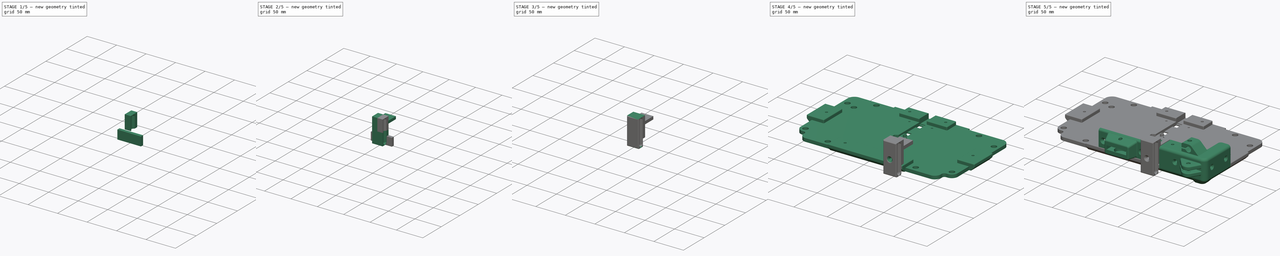
[diagram: build sequence overview — one tinted view per stage of 5, left to right]
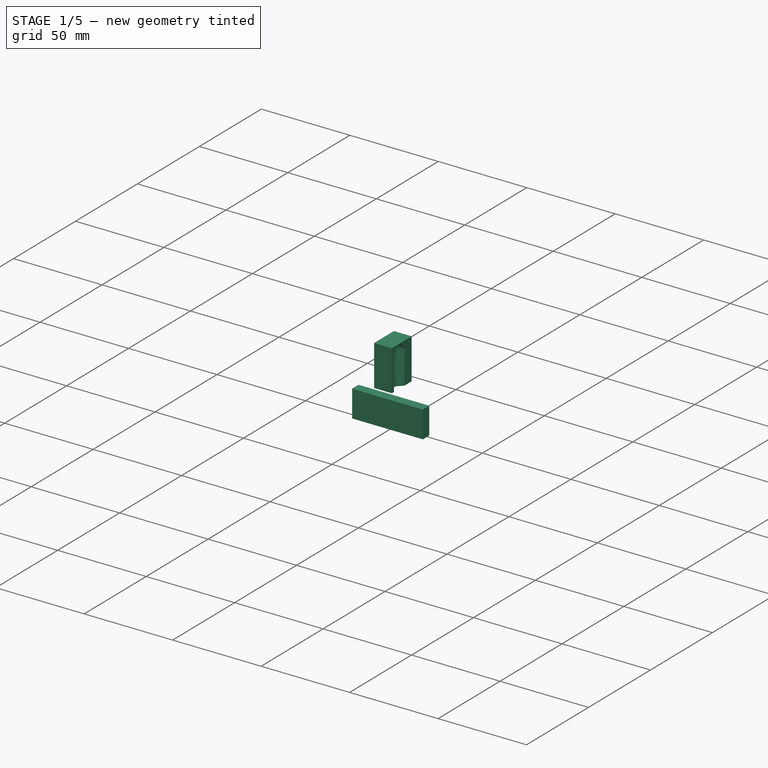
[diagram: stage 1 of 5 — iso view after this stage's code; geometry added in this stage tinted green]
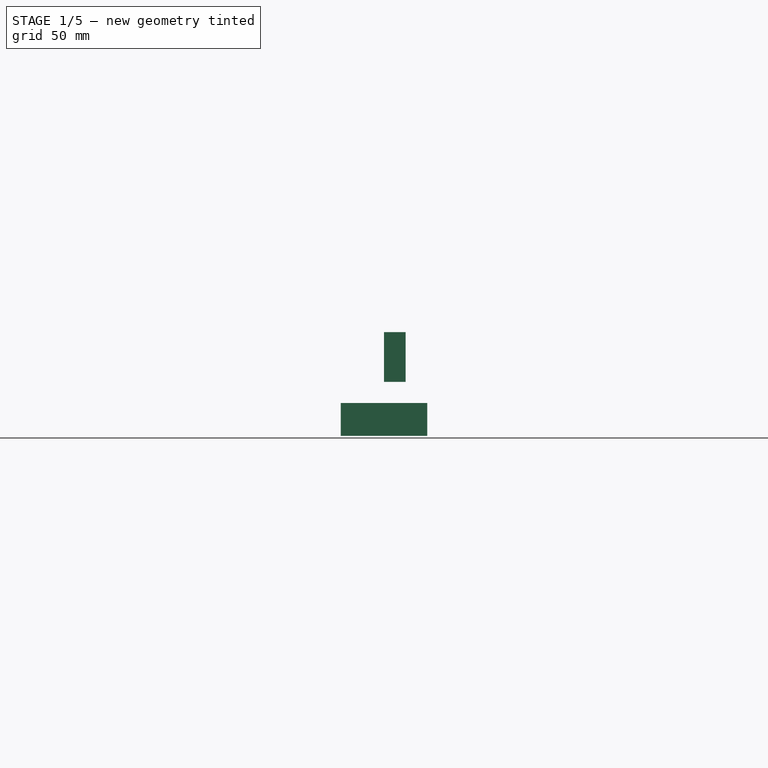
[diagram: stage 1 of 5 — front view after this stage's code; geometry added in this stage tinted green]
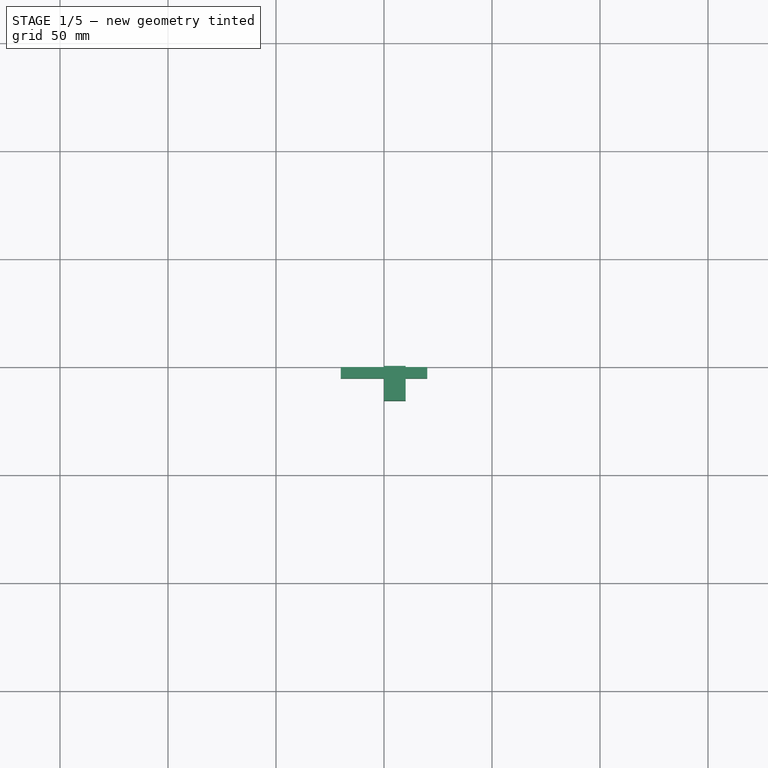
[diagram: stage 1 of 5 — top view after this stage's code; geometry added in this stage tinted green]
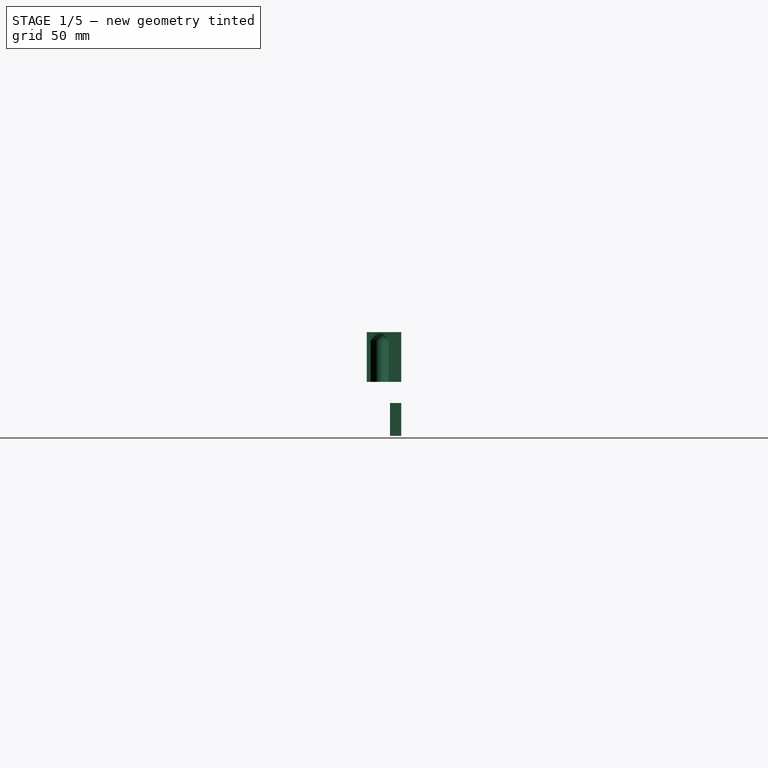
[diagram: stage 1 of 5 — right view after this stage's code; geometry added in this stage tinted green]
FCSTD DOCUMENT  (FreeCAD 0.16RUnknown)
Label: FrontGuide
License: All rights reserved
LicenseURL: http://en.wikipedia.org/wiki/All_rights_reserved
objects: Part::FeaturePython×9, Sketcher::SketchObject×6, Part::Cut×4, App::DocumentObjectGroup×4, PartDesign::Pad×3, Part::MultiFuse×3, Part::Mirroring×2, Part::Chamfer×2, Part::Feature×1, Spreadsheet::Sheet×1, Part::Sweep×1, Part::Fillet×1, PartDesign::Revolution×1
note: 37 computed .brp shape members not serialized (recipe doc carries the construction recipe); baked Part::Feature solids carry a one-line shape summary decoded from their .brp

FEATURE [Spreadsheet::Sheet] Spreadsheet  label="pars"
  cells = A1=Bolts and Nuts; B1=Value; D1=Components; E1=Value; A2=Thread Tight Tolerance (Radius, ratio); B2(ThrTighRatio)=0.96; D2=Tight Cilinder Tolerances (Radius, mm); E2(CilTight)=0.1; A3=Thread Tight Tolerance (Radius, mm); B3(ThrTightmm)=0.1; D3=Loose Cilinder Tolerances (Radius, mm); E3(CilLoose)=0.1; A5=Nut Slot Width Clearance (mm); B5(NutWidthClearmm)=0.1; A6=Nut Slot Thickess Clearance (mm); B6(NutThickClearmm)=0.1; A13=Particular parameters; B13=Value; A14=Front Clearance; B14(FrontClear)=1; A15=Ball Tightness; B15(BallTight)=0.33; A16=Rail Clearance; B16(RailClear)=0; A17=Tunnel Clearance; B17(BallTunClear)=0.05; A18=Ball Upper Clearance; B18(BallUpClear)=0.4; A19=Ball Shape Tolerance; B19(BallShapeTol)=-0.054; A20=Rail Length; B20(RailLen)=38; A21=Lower Cover Clearance; B21(LowClear)=0.2
FEATURE [PartDesign::Pad] Pad  label="RailBase001"
  Length = 23
  Length2 = 100
  Sketch = -> Sketch
  Type = 0
  expr: Length = pars.RailLen / 2 + 4
FEATURE [Sketcher::SketchObject] Sketch001  label="RailSection"
  expr: Constraints[6] = pars.BallShapeTol + 3
  sketch-geometry (4):
    g0: Circle [constr] CenterX=10 CenterY=-10 CenterZ=0 NormalX=0 NormalY=0 NormalZ=1 Radius=2.946
    g1: LineSegment StartX=10.2 StartY=-5.63373 StartZ=0 EndX=5.83373 EndY=-10 EndZ=0
    g2: LineSegment StartX=5.83373 StartY=-10 StartZ=0 EndX=10.2 EndY=-14.3663 EndZ=0
    g3: LineSegment StartX=10.2 StartY=-14.3663 StartZ=0 EndX=10.2 EndY=-5.63373 EndZ=0
  constraints (12):
    c: Coincident(g1,g2)
    c: Coincident(g2,g3)
    c: Coincident(g1,g3)
    c: Vertical(g3)
    c: Perpendicular(g2,g1)
    c: Angle(g1) = -2.35619
    c: Radius(g0) = 2.946
    c: Tangent(g1,g0)
    c: Tangent(g0,g2)
    c: DistanceX(g0) = 10
    c: DistanceX(g1) = 10.2
    c: DistanceY(g0) = -10
FEATURE [Sketcher::SketchObject] Sketch002  label="RailPath"
  Placement = pos=(0,0,0) rot=(1,0,0;1.5708rad)
  expr: Constraints[9] = pars.RailLen / 2
  sketch-geometry (3):
    g0: LineSegment StartX=6.5 StartY=0 StartZ=0 EndX=6.5 EndY=19 EndZ=0
    g1: ArcOfCircle CenterX=10.5 CenterY=19 CenterZ=0 NormalX=0 NormalY=0 NormalZ=1 Radius=4 StartAngle=1.5708 EndAngle=3.14159
    g2: LineSegment StartX=10.5 StartY=23 StartZ=0 EndX=18.5 EndY=23 EndZ=0
  constraints (11):
    c: Coincident(g1,g0)
    c: Tangent(g1,g0)
    c: Vertical(g0)
    c: PointOnObject(g0,g-1)
    c: Horizontal(g2)
    c: Coincident(g2,g1)
    c: Tangent(g2,g1)
    c: DistanceX(g1) = 10.5
    c: DistanceX(g2,g2) = 8
    c: DistanceY(g0,g0) = 19
    c: Radius(g1) = 4
FEATURE [Part::Sweep] Sweep  label="RailSweep"
  Frenet = false
  Sections = -> [Sketch001]
  Solid = true
  Spine = -> Sketch002 [Edge2,Edge1,Edge3]
  Transition = 1
FEATURE [Part::Fillet] Fillet  label="RailFillet"
  Base = -> Sweep
  Edges = 1 edges r=2.8: [Edge17]
FEATURE [Part::Cut] Cut  label="LaneCut"
  Base = -> Pad
  Tool = -> Fillet
FEATURE [App::DocumentObjectGroup] Group  label="Reference"
  Group = -> [Fillet002,FrontCorner_01,FocusWheelHolder_01,LowerCover_01]
FEATURE [Sketcher::SketchObject] Sketch011  label="LowCoverSpace"
  Placement = pos=(0,0,0) rot=(0.57735,0.57735,0.57735;2.0944rad)
  expr: Constraints[9] = -10 + pars.LowClear
  expr: Constraints[10] = 5 + pars.LowClear
  sketch-geometry (4):
    g0: LineSegment StartX=0 StartY=-9.8 StartZ=0 EndX=-5.2 EndY=-9.8 EndZ=0
    g1: LineSegment StartX=-5.2 StartY=-9.8 StartZ=0 EndX=-5.2 EndY=-25 EndZ=0
    g2: LineSegment StartX=-5.2 StartY=-25 StartZ=0 EndX=0 EndY=-25 EndZ=0
    g3: LineSegment StartX=0 StartY=-25 StartZ=0 EndX=0 EndY=-9.8 EndZ=0
  constraints (12):
    c: Coincident(g0,g1)
    c: Coincident(g1,g2)
    c: Coincident(g2,g3)
    c: Coincident(g3,g0)
    c: Horizontal(g0)
    c: Horizontal(g2)
    c: Vertical(g1)
    c: Vertical(g3)
    c: PointOnObject(g0,g-2)
    c: DistanceY(g0) = -9.8
    c: DistanceX(g0,g0) = 5.2
    c: DistanceY(g2) = -25
FEATURE [PartDesign::Pad] Pad002  label="LowCoverSpace001"
  Length = 40
  Length2 = 100
  Midplane = true
  Placement = pos=(0,0,0) rot=(0.57735,0.57735,0.57735;2.0944rad)
  Sketch = -> Sketch011
  Type = 0
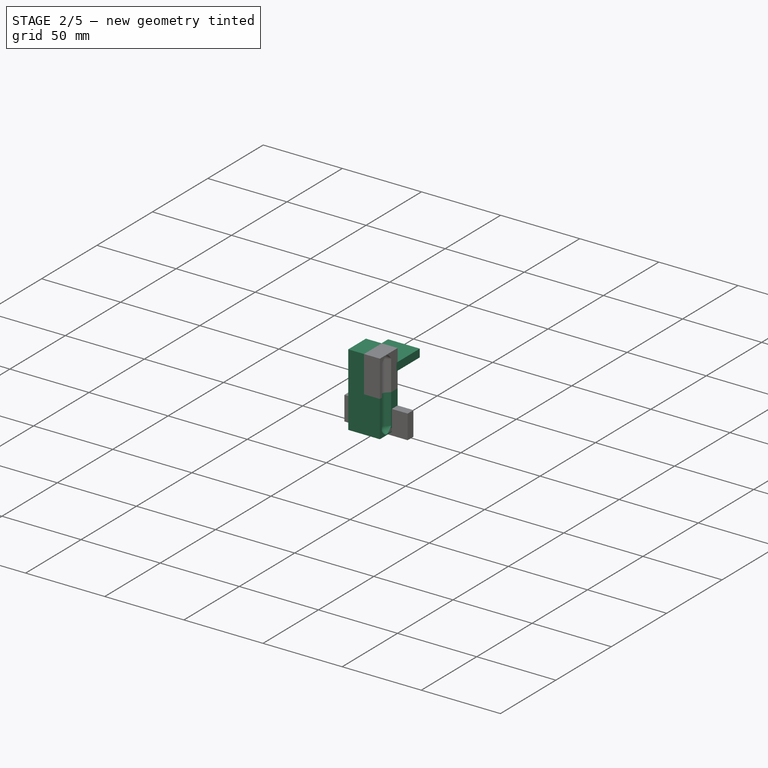
[diagram: stage 2 of 5 — iso view after this stage's code; geometry added in this stage tinted green]
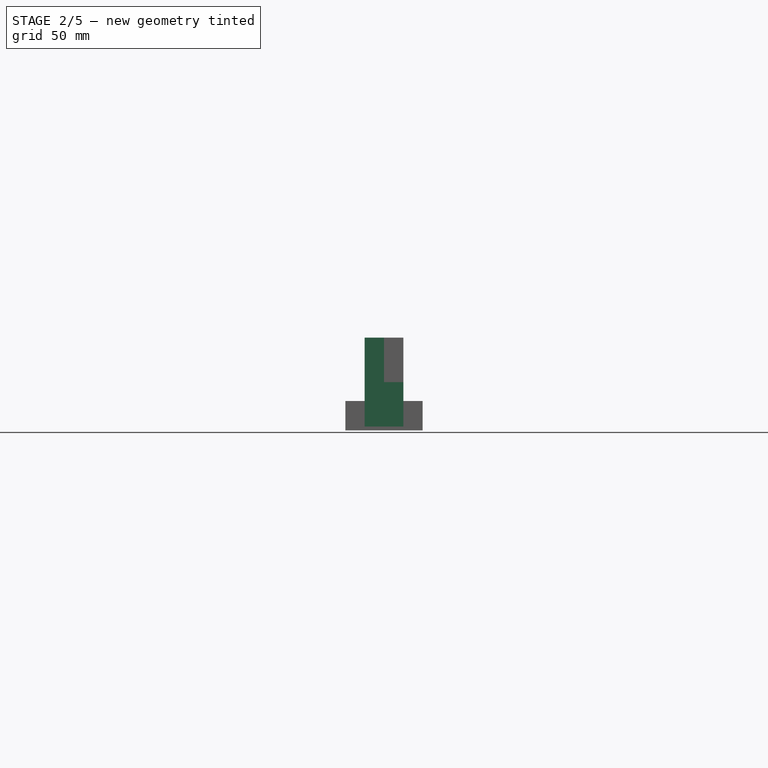
[diagram: stage 2 of 5 — front view after this stage's code; geometry added in this stage tinted green]
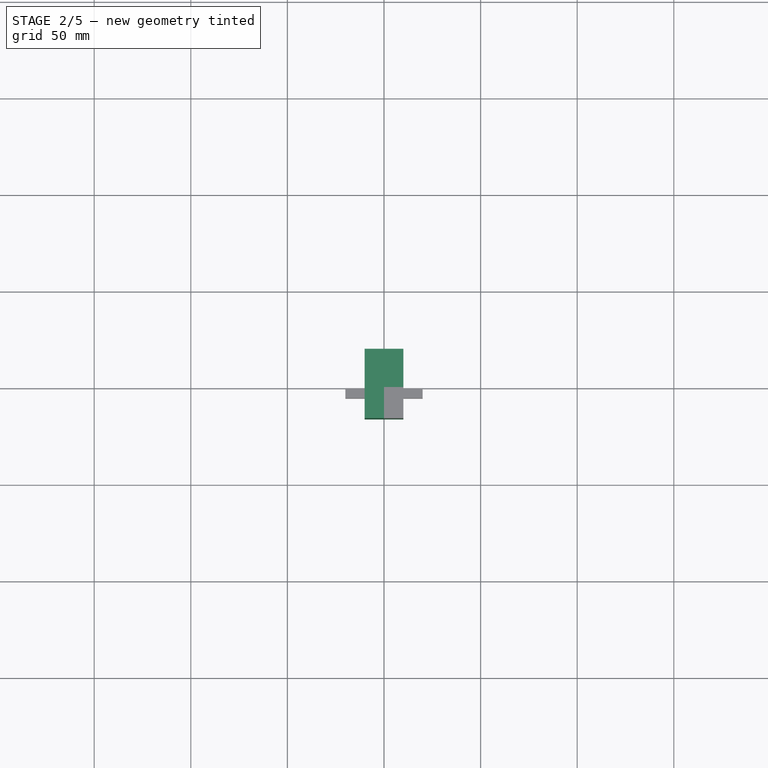
[diagram: stage 2 of 5 — top view after this stage's code; geometry added in this stage tinted green]
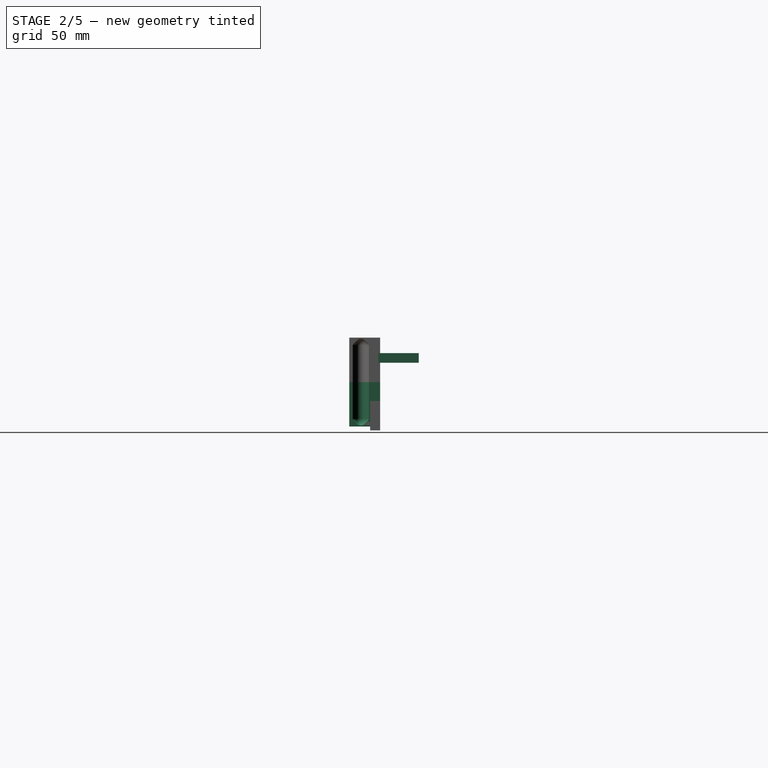
[diagram: stage 2 of 5 — right view after this stage's code; geometry added in this stage tinted green]
FEATURE [Sketcher::SketchObject] Sketch003  label="Plate"
  Placement = pos=(0,0,0) rot=(0.57735,0.57735,0.57735;2.0944rad)
  sketch-geometry (4):
    g0: LineSegment StartX=-1 StartY=15 StartZ=0 EndX=20 EndY=15 EndZ=0
    g1: LineSegment StartX=20 StartY=15 StartZ=0 EndX=20 EndY=10 EndZ=0
    g2: LineSegment StartX=20 StartY=10 StartZ=0 EndX=-1 EndY=10 EndZ=0
    g3: LineSegment StartX=-1 StartY=10 StartZ=0 EndX=-1 EndY=15 EndZ=0
  constraints (12):
    c: Coincident(g0,g1)
    c: Coincident(g2,g3)
    c: Coincident(g3,g0)
    c: Horizontal(g0)
    c: Horizontal(g2)
    c: Vertical(g3)
    c: Vertical(g1)
    c: DistanceY(g1,g1) = 5
    c: DistanceX(g1) = 20
    c: DistanceY(g1) = 10
    c: DistanceX(g0) = -1
    c: Coincident(g2,g1)
FEATURE [PartDesign::Pad] Pad001  label="Plate001"
  Length = 20
  Length2 = 100
  Midplane = true
  Placement = pos=(0,0,0) rot=(0.57735,0.57735,0.57735;2.0944rad)
  Sketch = -> Sketch003
  Type = 0
  expr: Length = RailBase.Constraints.RailWidth * 2
FEATURE [Part::Mirroring] Part__Mirroring002  label="LaneCut (Mirror #3)"
  Base = (0,0,0)
  Normal = (1,0,0)
  Source = -> Cut
FEATURE [Part::MultiFuse] Fusion002
  Shapes = -> [Part__Mirroring002,Cut]
FEATURE [Part::Mirroring] Part__Mirroring003  label="Fusion002 (Mirror #4)"
  Base = (0,0,0)
  Normal = (0,0,1)
  Source = -> Fusion002
FEATURE [Part::MultiFuse] Fusion003  label="Mirroring"
  Shapes = -> [Fusion002,Part__Mirroring003]
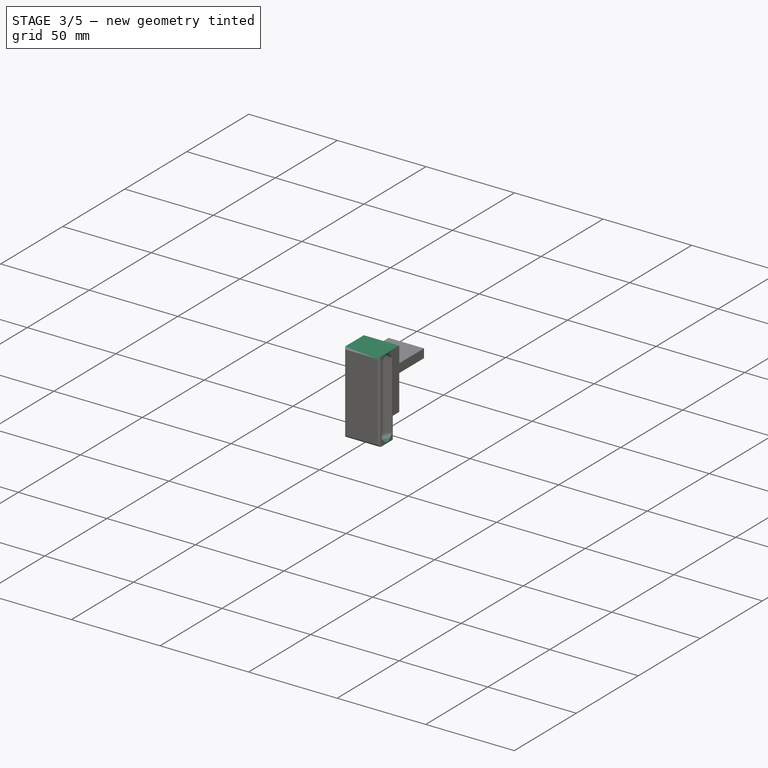
[diagram: stage 3 of 5 — iso view after this stage's code; geometry added in this stage tinted green]
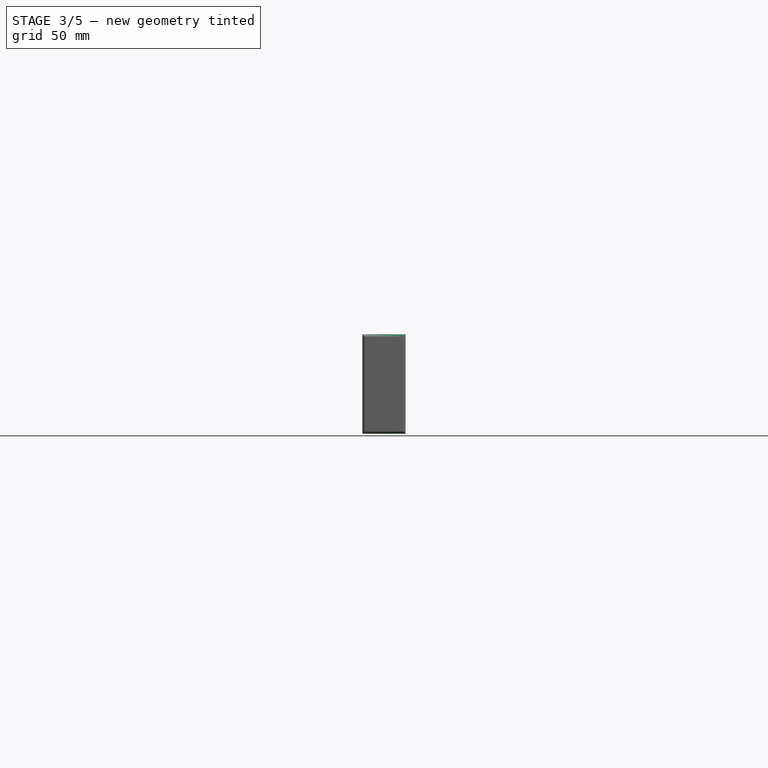
[diagram: stage 3 of 5 — front view after this stage's code; geometry added in this stage tinted green]
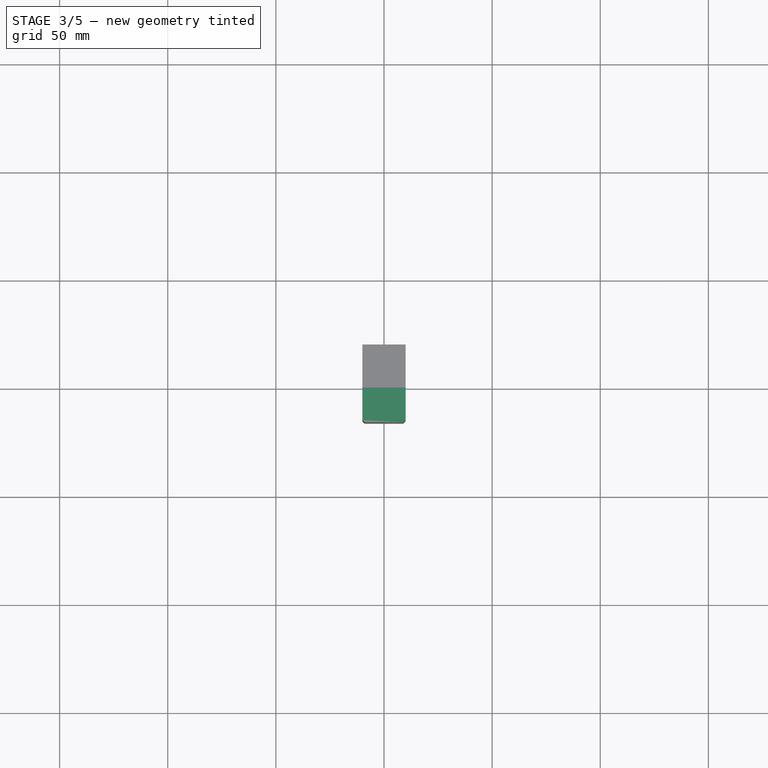
[diagram: stage 3 of 5 — top view after this stage's code; geometry added in this stage tinted green]
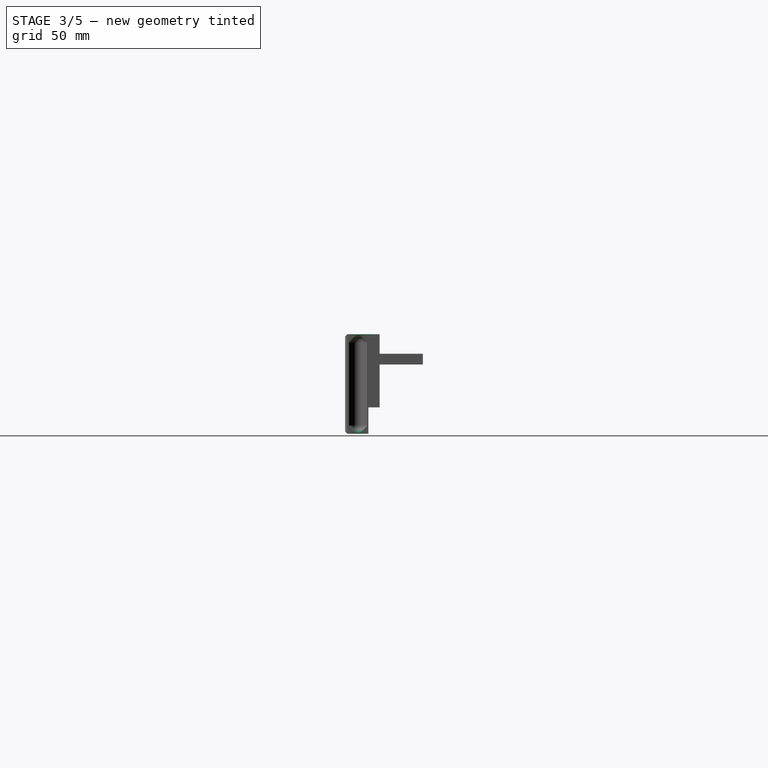
[diagram: stage 3 of 5 — right view after this stage's code; geometry added in this stage tinted green]
FEATURE [Part::FeaturePython] refine  label="Rail"  # WARN: FeaturePython — macro-defined, semantics opaque (R4)
  Base = -> Fusion003
FEATURE [App::DocumentObjectGroup] Group001  label="Rail_src"
  Group = -> [Sketch001,Sketch002,Sweep,refine,Fusion003]
FEATURE [Part::FeaturePython] Clone  label="Clone of Rail"  # Draft clone (typed FeaturePython)
  Objects = -> [refine]
  Placement = pos=(0,0,1) rot=(0,0,1;0rad)
  Scale = (1,1,1)
FEATURE [Part::MultiFuse] Fusion  label="PlateAdd"
  Shapes = -> [Clone,Pad001]
FEATURE [Part::FeaturePython] refine001  label="refine_Fusion"  # WARN: FeaturePython — macro-defined, semantics opaque (R4)
  Base = -> Fusion
FEATURE [Part::Chamfer] Chamfer  label="NiceChamfer"
  Base = -> refine001
  Edges = 4 edges r=1: [Edge17,Edge20,Edge23,Edge24]
FEATURE [Part::Cut] Cut003  label="LowCoverCut"
  Base = -> Chamfer
  Tool = -> Pad002
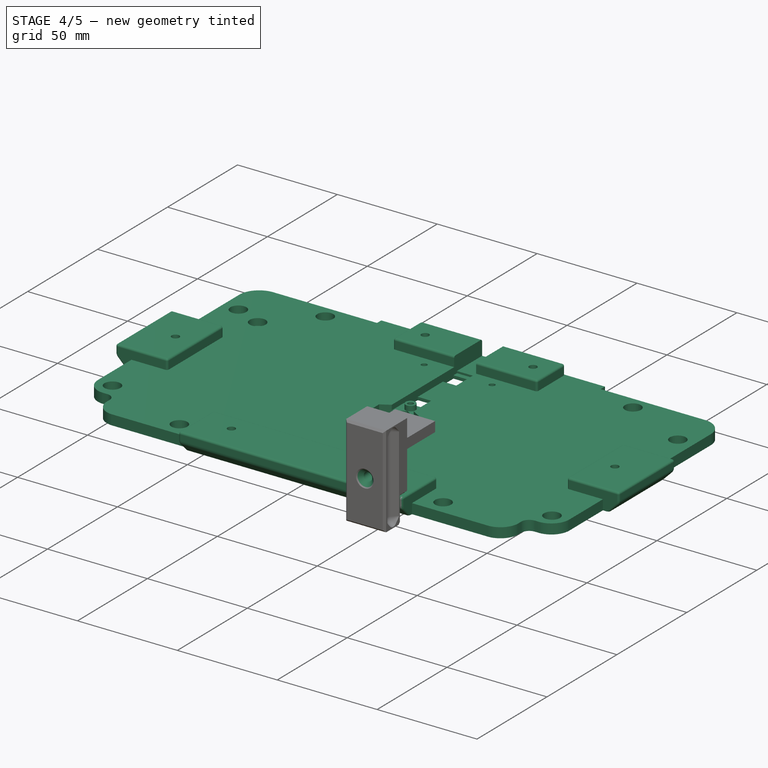
[diagram: stage 4 of 5 — iso view after this stage's code; geometry added in this stage tinted green]
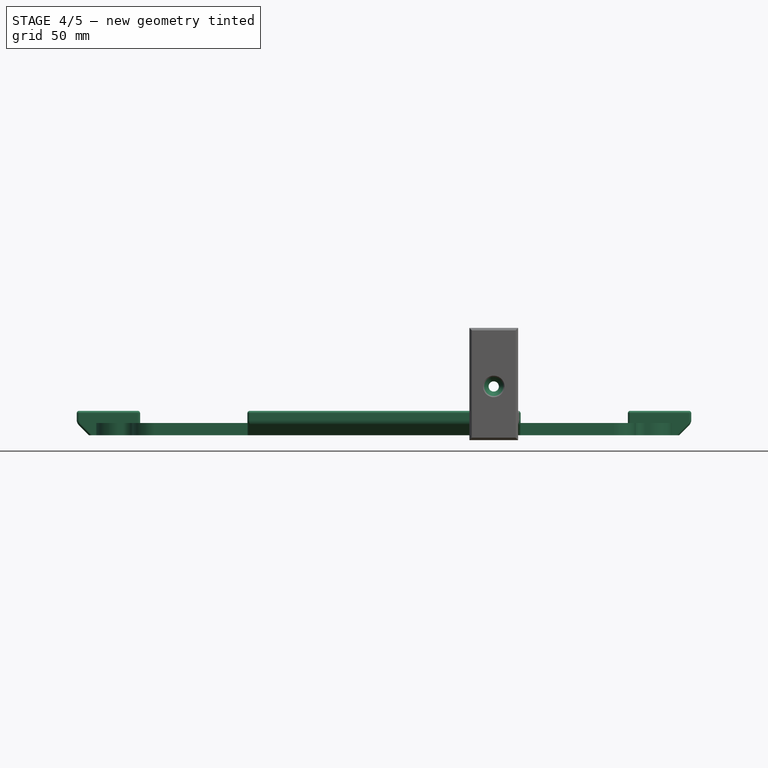
[diagram: stage 4 of 5 — front view after this stage's code; geometry added in this stage tinted green]
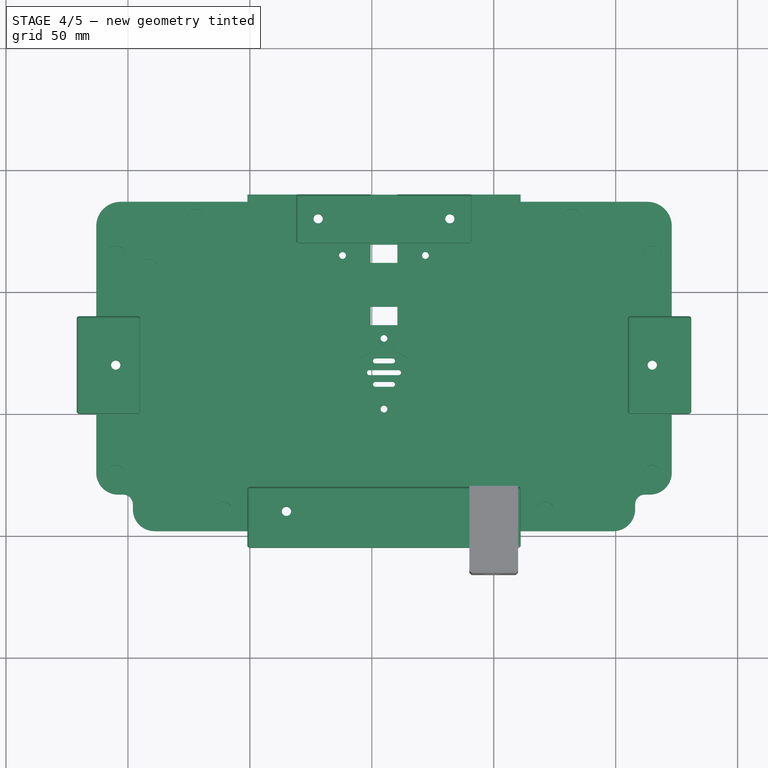
[diagram: stage 4 of 5 — top view after this stage's code; geometry added in this stage tinted green]
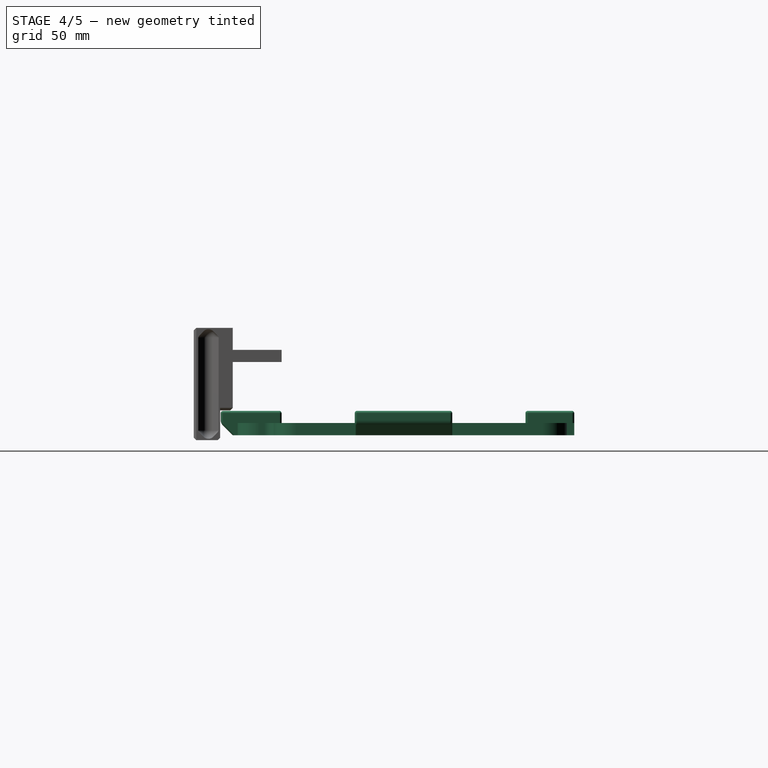
[diagram: stage 4 of 5 — right view after this stage's code; geometry added in this stage tinted green]
FEATURE [Sketcher::SketchObject] Sketch010  label="DIN7991M4Bolt"
  expr: Constraints[11] = pars.CilLoose + 2
  sketch-geometry (5):
    g0: LineSegment StartX=0 StartY=0 StartZ=0 EndX=4.4 EndY=0 EndZ=0
    g1: LineSegment StartX=4.4 StartY=0 StartZ=0 EndX=2.1 EndY=-2.3 EndZ=0
    g2: LineSegment StartX=2.1 StartY=-2.3 StartZ=0 EndX=2.1 EndY=-20 EndZ=0
    g3: LineSegment StartX=2.1 StartY=-20 StartZ=0 EndX=0 EndY=-20 EndZ=0
    g4: LineSegment StartX=0 StartY=-20 StartZ=0 EndX=0 EndY=0 EndZ=0
  constraints (14):
    c: Coincident(g0,g1)
    c: Coincident(g1,g2)
    c: Coincident(g2,g3)
    c: Coincident(g3,g4)
    c: Coincident(g4,g0)
    c: Vertical(g4)
    c: Vertical(g2)
    c: Horizontal(g0)
    c: Horizontal(g3)
    c: Coincident(g0,g-1)
    c: Angle(g0,g1) = 0.785398
    c: DistanceX(g3,g3) = 2.1
    c: DistanceY(g4,g4) = 20
    c: DistanceY(g1,g0) = 2.3
FEATURE [PartDesign::Revolution] Revolution001  label="DIN7991M4Bolt001"
  Angle = 360
  Axis = (0,1,0)
  Base = (0,0,0)
  ReferenceAxis = -> Sketch010 [V_Axis]
  Reversed = true
  Sketch = -> Sketch010
FEATURE [App::DocumentObjectGroup] Group003  label="Component_src"
  Group = -> [Revolution001]
FEATURE [Part::FeaturePython] Clone001  label="Clone of DIN7991M4Bolt001"  # Draft clone (typed FeaturePython)
  Objects = -> [Revolution001]
  Placement = pos=(0,-16,0) rot=(1,0,0;3.14159rad)
  Scale = (1,1,1)
FEATURE [Part::FeaturePython] LowerCover_01  label="LowerCover"  # a2plus imported part (geometry in sourceFile) (typed FeaturePython)
  Placement = pos=(-45,67,-15) rot=(0,0,1;0rad)
  fixedPosition = false
  sourceFile = ./../../MainFrame/LowerCover.fcstd
  timeLastImport = 1.52061e+09
  updateColors = true
FEATURE [Part::Chamfer] Chamfer001  label="LowSpaceChamfer"
  Base = -> Cut003
  Edges = 4 edges r=1: [Edge10,Edge28,Edge46,Edge48]
FEATURE [Part::Cut] Cut001  label="FrontBoltCut"
  Base = -> Chamfer001
  Tool = -> Clone001
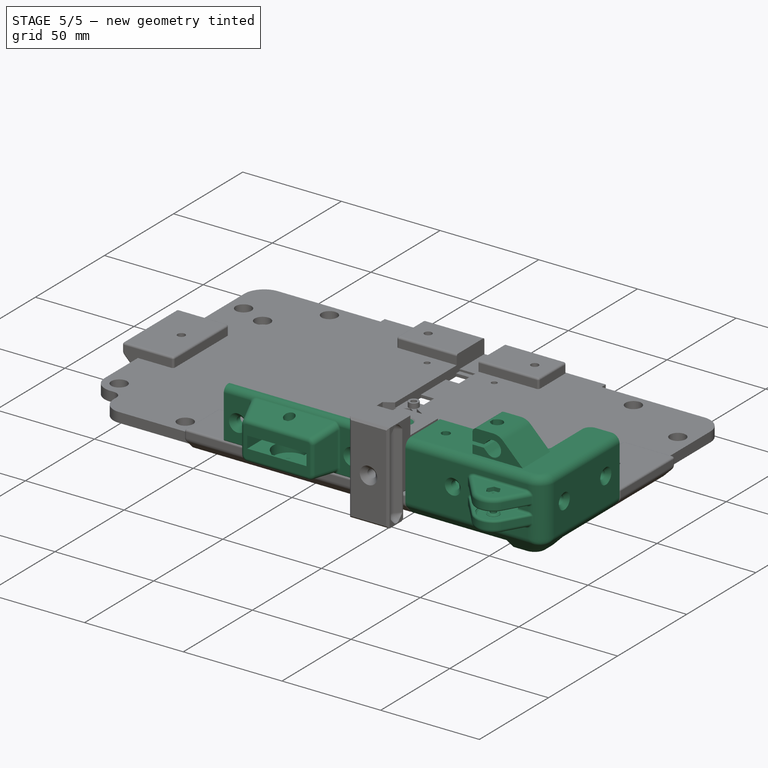
[diagram: stage 5 of 5 — iso view after this stage's code; geometry added in this stage tinted green]
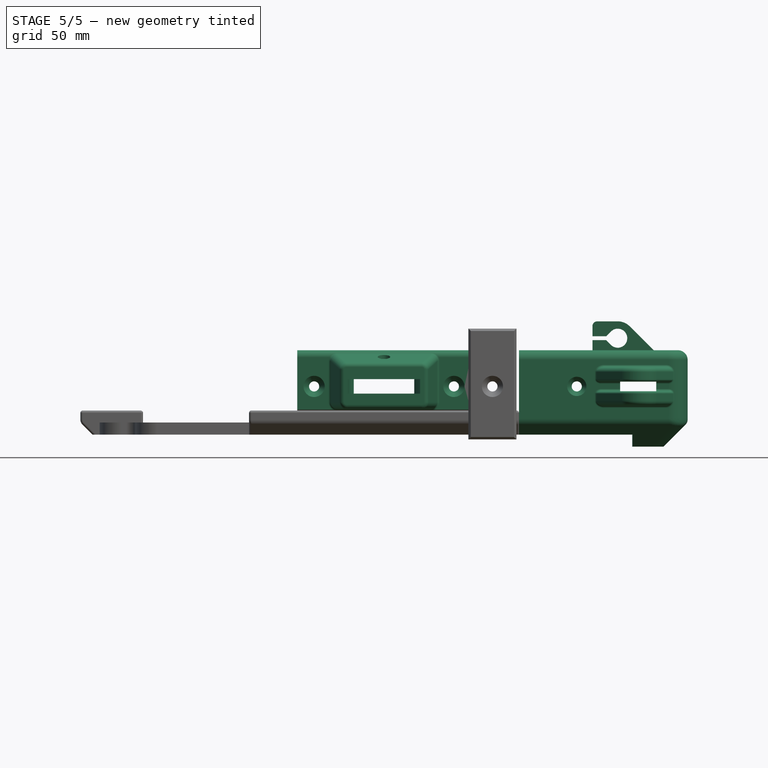
[diagram: stage 5 of 5 — front view after this stage's code; geometry added in this stage tinted green]
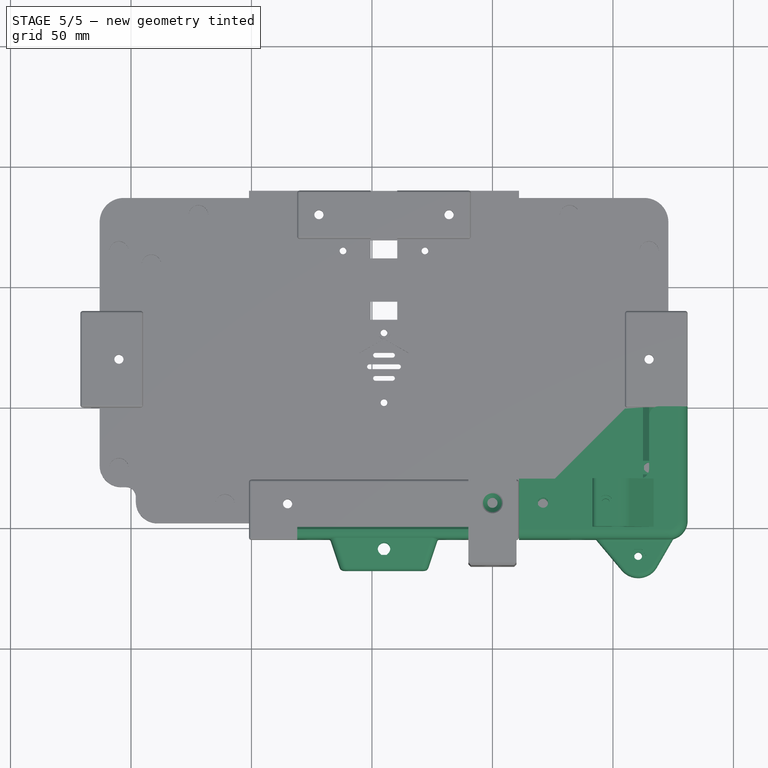
[diagram: stage 5 of 5 — top view after this stage's code; geometry added in this stage tinted green]
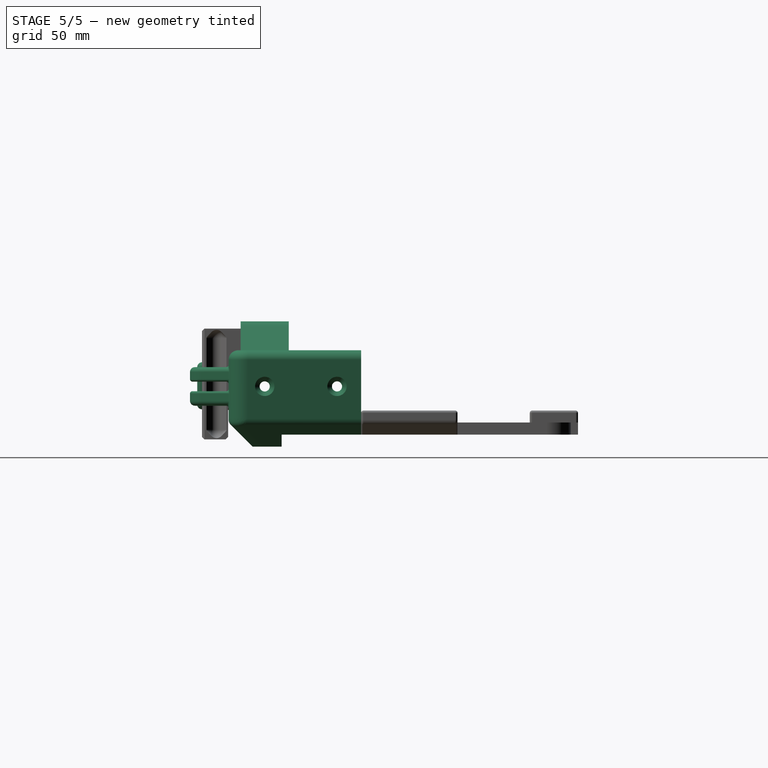
[diagram: stage 5 of 5 — right view after this stage's code; geometry added in this stage tinted green]
FEATURE [Sketcher::SketchObject] Sketch  label="RailBase"
  expr: Constraints.RailWidth = 10 - pars.RailClear
  sketch-geometry (4):
    g0: LineSegment StartX=10 StartY=-16 StartZ=0 EndX=0 EndY=-16 EndZ=0
    g1: LineSegment StartX=0 StartY=-16 StartZ=0 EndX=0 EndY=0 EndZ=0
    g2: LineSegment StartX=0 StartY=0 StartZ=0 EndX=10 EndY=0 EndZ=0
    g3: LineSegment StartX=10 StartY=0 StartZ=0 EndX=10 EndY=-16 EndZ=0
  constraints (11):
    c: Coincident(g0,g1)
    c: Coincident(g1,g2)
    c: Coincident(g2,g3)
    c: Coincident(g3,g0)
    c: Horizontal(g0)
    c: Horizontal(g2)
    c: Vertical(g1)
    c: Vertical(g3)
    c: DistanceX(g2,g2) = 10  'RailWidth'
    c: DistanceY(g3,g3) = 16  'RailDepth'
    c: Coincident(g1,g-1)
FEATURE [Part::Feature] Fillet002  label="T slot extrusion 20x20x200.001"
  Placement = pos=(-142,0,-10) rot=(0,-1,0;1.5708rad)
  shape: bbox 200 x 20 x 20 mm, 51 faces (baked)
FEATURE [Part::FeaturePython] FrontCorner_01  label="FrontCorner"  # a2plus imported part (geometry in sourceFile) (typed FeaturePython)
  Placement = pos=(65,-12,0) rot=(0,0,1;0rad)
  fixedPosition = true
  sourceFile = ./../../MainFrame/FrontCorner.fcstd
  timeLastImport = 1.52061e+09
  updateColors = true
FEATURE [Part::FeaturePython] FocusWheelHolder_01  label="FocusWheelHolder"  # a2plus imported part (geometry in sourceFile) (typed FeaturePython)
  Placement = pos=(-45,0,0) rot=(0,0,1;0rad)
  fixedPosition = false
  sourceFile = ./FocusWheelHolder.fcstd
  timeLastImport = 1.52061e+09
  updateColors = true
FEATURE [Part::FeaturePython] Clone002  label="Clone of DIN7991M4Bolt002"  # Draft clone (typed FeaturePython)
  Objects = -> [Revolution001]
  Placement = pos=(0,10,15) rot=(1,0,0;1.5708rad)
  Scale = (1,1,1)
FEATURE [Part::Cut] Cut002  label="UpperBoltCut"
  Base = -> Cut001
  Tool = -> Clone002
FEATURE [App::DocumentObjectGroup] Group002  label="src"
  Group = -> [Fusion,Cut002]
FEATURE [Part::FeaturePython] Clone003  label="FrontGuide"  # Draft clone (typed FeaturePython)
  Objects = -> [Cut002]
  Scale = (1,1,1)
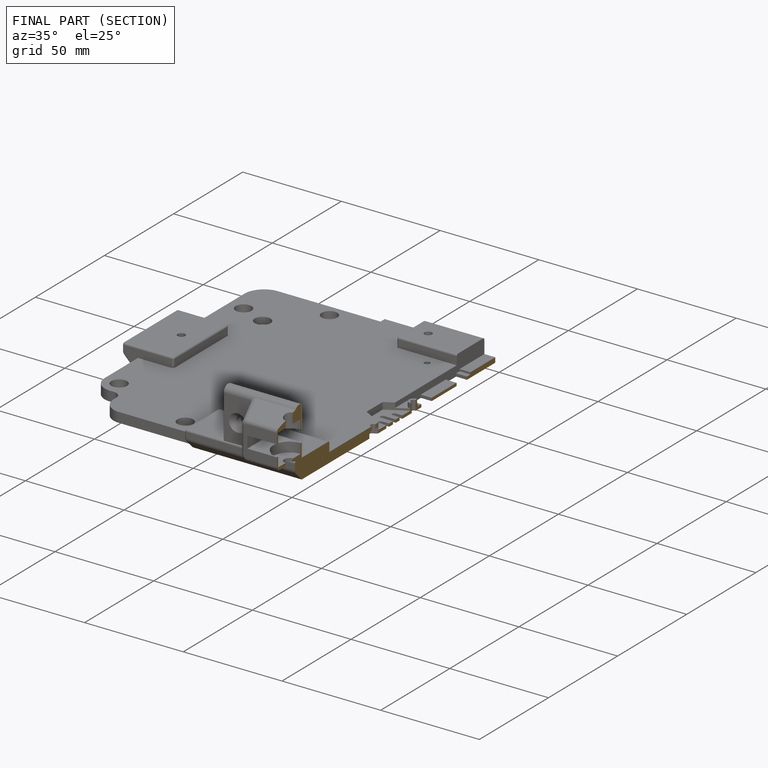
[diagram: finished part — half-section view (interior)]
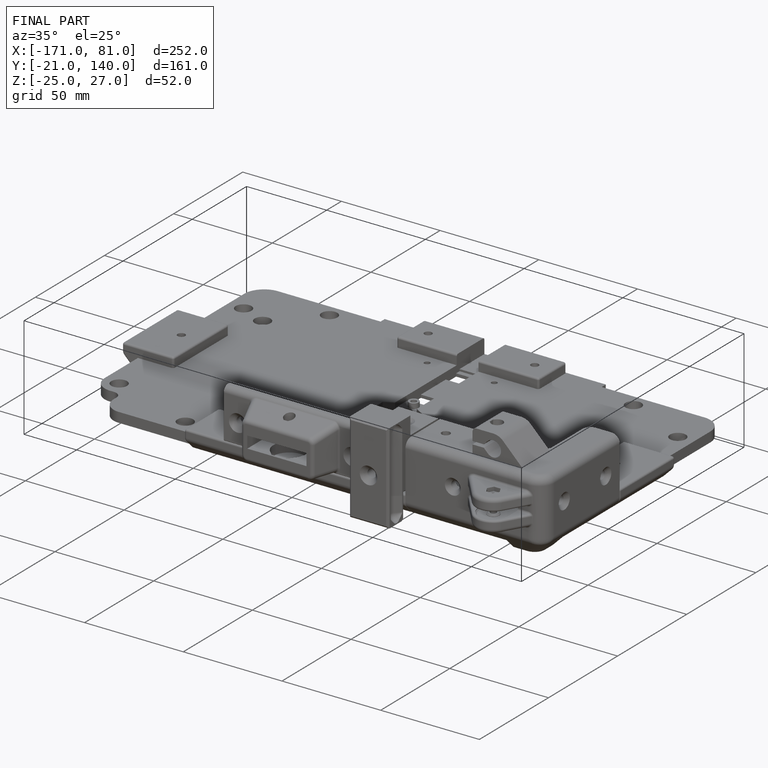
[diagram: finished part — iso view with bounding-box wireframe]
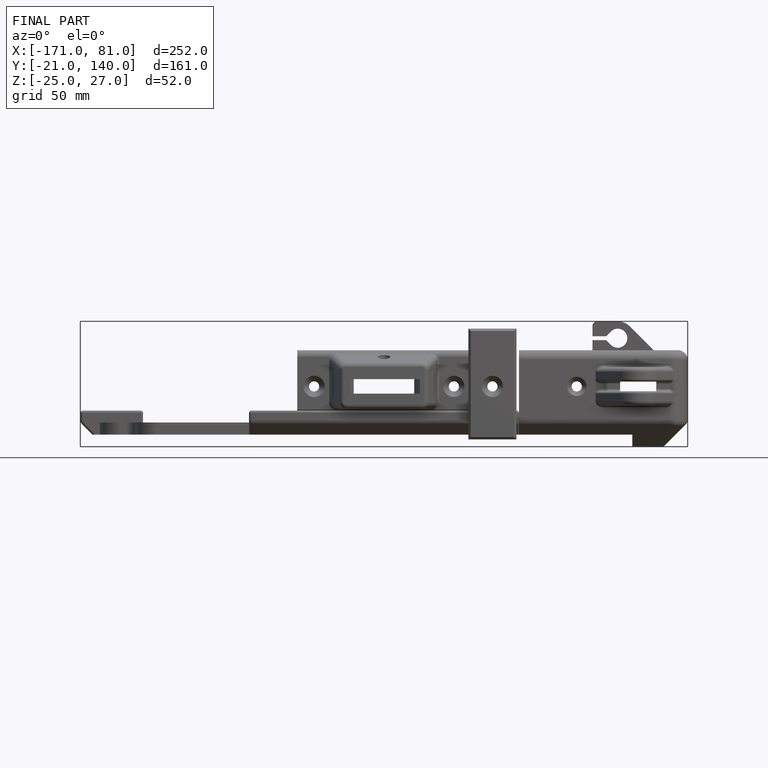
[diagram: finished part — front view with bounding-box wireframe]
